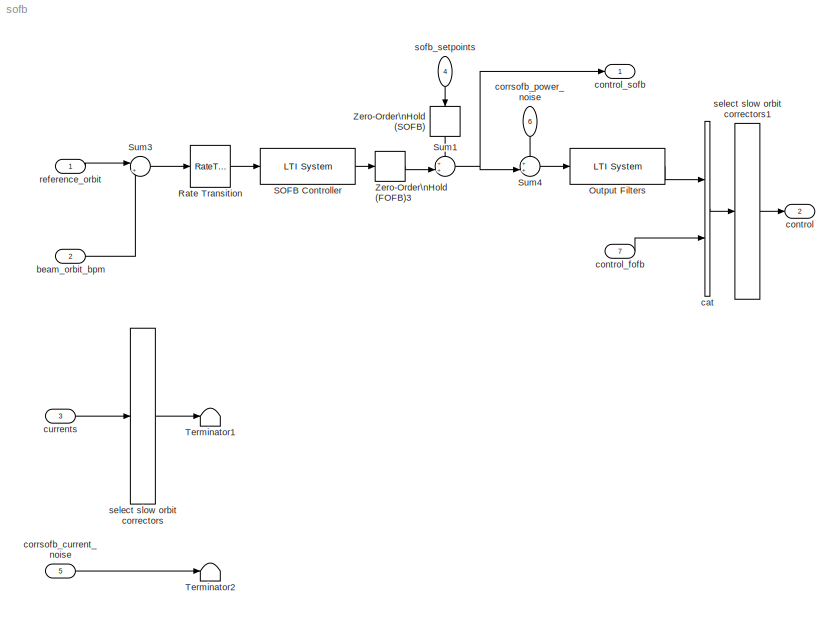
MODEL sofb
KIND model
BLOCK [Reference] Output Filters  REF=cstblocks/LTI System
  IC = []
  Ports = [1, 1]
  SID = 8
  SourceBlock = cstblocks/LTI System
  SourceType = LTI Block
  sys = corrpsfilter
BLOCK [RateTransition] Rate Transition
  OutPortSampleTimeMultiple = ceil(fofbctrl.Ts/sofbctrl.Ts)
  SID = 9
BLOCK [Reference] SOFB Controller  REF=cstblocks/LTI System
  IC = []
  Ports = [1, 1]
  SID = 10
  SourceBlock = cstblocks/LTI System
  SourceType = LTI Block
  sys = sofbctrl
BLOCK [Sum] Sum1
  IconShape = round
  InputSameDT = off
  Inputs = ++|
  OutDataTypeStr = Inherit: Inherit via internal rule
  Ports = [2, 1]
  SID = 11
  SaturateOnIntegerOverflow = off
BLOCK [Sum] Sum3
  IconShape = round
  InputSameDT = off
  Inputs = |+-
  OutDataTypeStr = Inherit: Inherit via internal rule
  Ports = [2, 1]
  SID = 12
  SaturateOnIntegerOverflow = off
BLOCK [Sum] Sum4
  IconShape = round
  InputSameDT = off
  Inputs = ++|
  OutDataTypeStr = Inherit: Inherit via internal rule
  Ports = [2, 1]
  SID = 13
  SampleTime = sofbctrl.Ts
  SaturateOnIntegerOverflow = off
BLOCK [Terminator] Terminator1
  SID = 14
BLOCK [Terminator] Terminator2
  SID = 15
BLOCK [ZeroOrderHold] Zero-Order\nHold (FOFB)3
  SID = 16
  SampleTime = sofbctrl.Ts
BLOCK [ZeroOrderHold] Zero-Order\nHold (SOFB)
  SID = 17
  SampleTime = sofbctrl.Ts
BLOCK [Inport] beam_orbit_bpm
  IconDisplay = Port number
  Port = 2
  PortDimensions = nbpm
  SID = 2
BLOCK [Concatenate] cat
  Mode = Vector
  Ports = [2, 1]
  SID = 18
BLOCK [Outport] control
  IconDisplay = Port number
  Port = 2
  SID = 22
BLOCK [Inport] control_fofb
  IconDisplay = Port number
  Port = 7
  PortDimensions = ncorrfofb
  SID = 7
BLOCK [Outport] control_sofb
  IconDisplay = Port number
  SID = 21
BLOCK [Inport] corrsofb_current_noise
  IconDisplay = Port number
  Port = 5
  PortDimensions = ncorrsofb
  SID = 5
BLOCK [Inport] corrsofb_power_noise
  IconDisplay = Port number
  Port = 6
  PortDimensions = ncorrsofb
  SID = 6
BLOCK [Inport] currents
  IconDisplay = Port number
  Port = 3
  PortDimensions = ncorrmagnet
  SID = 3
BLOCK [Inport] reference_orbit
  IconDisplay = Port number
  PortDimensions = nbpm
  SID = 1
BLOCK [Selector] select slow orbit correctors
  IndexOptions = Index vector (dialog)
  Indices = corrsofbselect
  InputPortWidth = ncorrmagnet
  OutputSizes = 1
  Ports = [1, 1]
  SID = 19
BLOCK [Selector] select slow orbit correctors1
  IndexOptions = Index vector (dialog)
  Indices = corrordering
  InputPortWidth = ncorr
  OutputSizes = 1
  Ports = [1, 1]
  SID = 20
BLOCK [Inport] sofb_setpoints
  IconDisplay = Port number
  Port = 4
  PortDimensions = ncorrsofb
  SID = 4
LINE Output Filters:1 -> cat:1
LINE Rate Transition:1 -> SOFB Controller:1
LINE SOFB Controller:1 -> Zero-Order\nHold (FOFB)3:1
NET Sum1:1 -> Sum4:2, control_sofb:1
LINE Sum3:1 -> Rate Transition:1
LINE Sum4:1 -> Output Filters:1
LINE Zero-Order\nHold (FOFB)3:1 -> Sum1:2
LINE Zero-Order\nHold (SOFB):1 -> Sum1:1
LINE beam_orbit_bpm:1 -> Sum3:2
LINE cat:1 -> select slow orbit correctors1:1
LINE control_fofb:1 -> cat:2
LINE corrsofb_current_noise:1 -> Terminator2:1
LINE corrsofb_power_noise:1 -> Sum4:1
LINE currents:1 -> select slow orbit correctors:1
LINE reference_orbit:1 -> Sum3:1
LINE select slow orbit correctors1:1 -> control:1
LINE select slow orbit correctors:1 -> Terminator1:1
LINE sofb_setpoints:1 -> Zero-Order\nHold (SOFB):1
note: NET lines group one-source signal fan-out (src -> all destinations, sorted); 1:1 wires keep LINE
